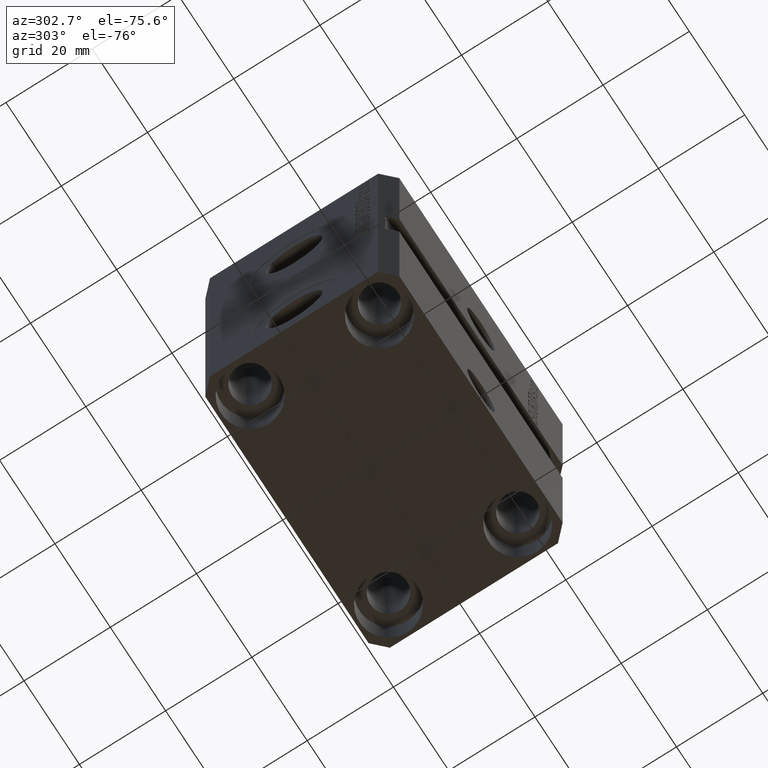
[diagram: clean part render]
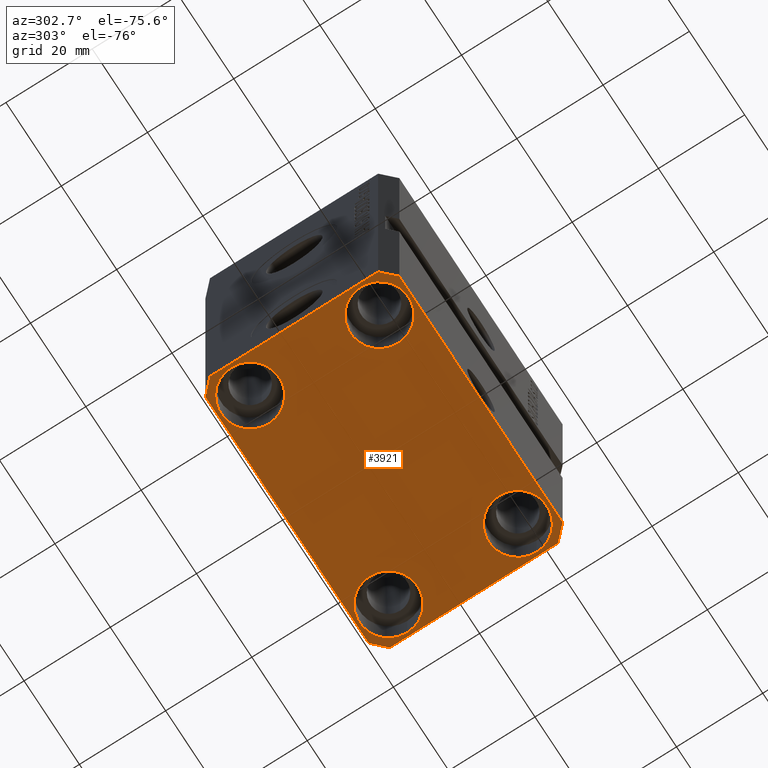
[diagram: same view with one face highlighted and labeled with its STEP entity id]
A machine part, auxiliary view. The second image highlights one B-rep face of the part: STEP entity #3921.
In plain terms, the highlighted planar face has unit normal (0, 0, 1).
Its self-contained STEP definition (entity closure, byte-faithful):
#716 = CARTESIAN_POINT ( 'NONE',  ( 29.49999999999650413, -22.49999999999949196, -77.00000000000000000 ) ) ;
#984 = AXIS2_PLACEMENT_3D ( 'NONE', #17816, #14086, #31594 ) ;
#1004 = LINE ( 'NONE', #39900, #18435 ) ;
#1251 = DIRECTION ( 'NONE',  ( -0.000000000000000000, -0.000000000000000000, 1.000000000000000000 ) ) ;
#1961 = ORIENTED_EDGE ( 'NONE', *, *, #3130, .F. ) ;
#2753 = DIRECTION ( 'NONE',  ( 0.7071067811865474617, -0.7071067811865474617, 0.000000000000000000 ) ) ;
#2755 = CARTESIAN_POINT ( 'NONE',  ( 29.49999999999707967, 22.49999999999951328, -77.00000000000000000 ) ) ;
#3130 = EDGE_CURVE ( 'NONE', #16414, #39366, #18090, .T. ) ;
#3285 = CARTESIAN_POINT ( 'NONE',  ( 32.49999999999651124, -19.49999999999949196, -77.00000000000000000 ) ) ;
#3382 = VERTEX_POINT ( 'NONE', #20301 ) ;
#3740 = CIRCLE ( 'NONE', #8920, 6.749999999958452790 ) ;
#3921 = ADVANCED_FACE ( 'NONE', ( #10703, #6530, #10923, #39377, #35184 ), #31465, .F. ) ;
#5576 = EDGE_CURVE ( 'NONE', #30164, #33578, #1004, .T. ) ;
#6197 = DIRECTION ( 'NONE',  ( 1.000000000000000000, 0.000000000000000000, 0.000000000000000000 ) ) ;
#6279 = DIRECTION ( 'NONE',  ( 1.000000000000000000, 0.000000000000000000, 0.000000000000000000 ) ) ;
#6289 = EDGE_CURVE ( 'NONE', #9867, #15100, #18982, .T. ) ;
#6530 = FACE_BOUND ( 'NONE', #42684, .T. ) ;
#6590 = EDGE_CURVE ( 'NONE', #13483, #14586, #39299, .T. ) ;
#6862 = AXIS2_PLACEMENT_3D ( 'NONE', #21591, #17423, #42822 ) ;
#7390 = CARTESIAN_POINT ( 'NONE',  ( 32.49999999999702993, 19.49999999999945999, -77.00000000000000000 ) ) ;
#7509 = DIRECTION ( 'NONE',  ( 1.000000000000000000, 0.000000000000000000, 0.000000000000000000 ) ) ;
#7963 = DIRECTION ( 'NONE',  ( -0.000000000000000000, -0.000000000000000000, 1.000000000000000000 ) ) ;
#8066 = CARTESIAN_POINT ( 'NONE',  ( -18.24999999995845812, -15.00000000000000000, -77.00000000000000000 ) ) ;
#8144 = DIRECTION ( 'NONE',  ( 0.7071067811865483499, 0.7071067811865466846, 0.000000000000000000 ) ) ;
#8196 = CARTESIAN_POINT ( 'NONE',  ( -25.00000000000000355, -15.00000000000000000, -77.00000000000000000 ) ) ;
#8198 = DIRECTION ( 'NONE',  ( 1.000000000000000000, 1.176083712526788232E-16, 0.000000000000000000 ) ) ;
#8543 = ORIENTED_EDGE ( 'NONE', *, *, #14557, .F. ) ;
#8920 = AXIS2_PLACEMENT_3D ( 'NONE', #41700, #1251, #6279 ) ;
#9867 = VERTEX_POINT ( 'NONE', #34952 ) ;
#10648 = ORIENTED_EDGE ( 'NONE', *, *, #45693, .T. ) ;
#10703 = FACE_BOUND ( 'NONE', #20825, .T. ) ;
#10923 = FACE_BOUND ( 'NONE', #38080, .T. ) ;
#11391 = LINE ( 'NONE', #3285, #29818 ) ;
#12040 = EDGE_CURVE ( 'NONE', #3382, #18371, #3740, .T. ) ;
#12187 = CARTESIAN_POINT ( 'NONE',  ( -32.49999999999650413, -19.49999999999949907, -77.00000000000000000 ) ) ;
#13483 = VERTEX_POINT ( 'NONE', #32022 ) ;
#14086 = DIRECTION ( 'NONE',  ( -0.000000000000000000, -0.000000000000000000, 1.000000000000000000 ) ) ;
#14120 = DIRECTION ( 'NONE',  ( -1.000000000000000000, -2.352167425053553784E-16, 0.000000000000000000 ) ) ;
#14213 = CIRCLE ( 'NONE', #40297, 6.750000000041541881 ) ;
#14557 = EDGE_CURVE ( 'NONE', #16771, #16414, #11391, .T. ) ;
#14586 = VERTEX_POINT ( 'NONE', #31693 ) ;
#15100 = VERTEX_POINT ( 'NONE', #12187 ) ;
#15471 = ORIENTED_EDGE ( 'NONE', *, *, #28351, .T. ) ;
#15689 = ORIENTED_EDGE ( 'NONE', *, *, #19645, .F. ) ;
#15819 = CARTESIAN_POINT ( 'NONE',  ( -31.75000000004154899, -15.00000000000000000, -77.00000000000000000 ) ) ;
#15909 = EDGE_CURVE ( 'NONE', #38912, #24362, #42581, .T. ) ;
#15933 = DIRECTION ( 'NONE',  ( 0.000000000000000000, -1.000000000000000000, 0.000000000000000000 ) ) ;
#16177 = ORIENTED_EDGE ( 'NONE', *, *, #26714, .F. ) ;
#16414 = VERTEX_POINT ( 'NONE', #31493 ) ;
#16488 = CARTESIAN_POINT ( 'NONE',  ( -29.49999999999650413, -22.49999999999949907, -77.00000000000000000 ) ) ;
#16771 = VERTEX_POINT ( 'NONE', #43943 ) ;
#16988 = AXIS2_PLACEMENT_3D ( 'NONE', #42858, #17461, #20719 ) ;
#17286 = AXIS2_PLACEMENT_3D ( 'NONE', #42955, #18454, #18011 ) ;
#17417 = EDGE_CURVE ( 'NONE', #24362, #38912, #20907, .T. ) ;
#17423 = DIRECTION ( 'NONE',  ( -0.000000000000000000, -0.000000000000000000, 1.000000000000000000 ) ) ;
#17461 = DIRECTION ( 'NONE',  ( 0.000000000000000000, 0.000000000000000000, 1.000000000000000000 ) ) ;
#17615 = LINE ( 'NONE', #34411, #21690 ) ;
#17816 = CARTESIAN_POINT ( 'NONE',  ( 24.99999999999999645, 15.00000000000000888, -77.00000000000000000 ) ) ;
#18011 = DIRECTION ( 'NONE',  ( 1.000000000000000000, 0.000000000000000000, 0.000000000000000000 ) ) ;
#18090 = LINE ( 'NONE', #7390, #40788 ) ;
#18371 = VERTEX_POINT ( 'NONE', #36026 ) ;
#18435 = VECTOR ( 'NONE', #8198, 1000.000000000000000 ) ;
#18454 = DIRECTION ( 'NONE',  ( -0.000000000000000000, -0.000000000000000000, 1.000000000000000000 ) ) ;
#18856 = VECTOR ( 'NONE', #14120, 1000.000000000000000 ) ;
#18982 = LINE ( 'NONE', #25775, #35561 ) ;
#19026 = EDGE_CURVE ( 'NONE', #15100, #30164, #41417, .T. ) ;
#19163 = AXIS2_PLACEMENT_3D ( 'NONE', #29671, #43663, #25722 ) ;
#19645 = EDGE_CURVE ( 'NONE', #30735, #9867, #17615, .T. ) ;
#20143 = DIRECTION ( 'NONE',  ( -0.000000000000000000, -0.000000000000000000, 1.000000000000000000 ) ) ;
#20301 = CARTESIAN_POINT ( 'NONE',  ( 31.74999999995845101, 15.00000000000000888, -77.00000000000000000 ) ) ;
#20424 = CARTESIAN_POINT ( 'NONE',  ( -32.49999999999650413, -19.49999999999949907, -77.00000000000000000 ) ) ;
#20719 = DIRECTION ( 'NONE',  ( 1.000000000000000000, 0.000000000000000000, -0.000000000000000000 ) ) ;
#20825 = EDGE_LOOP ( 'NONE', ( #10648, #15471 ) ) ;
#20860 = ORIENTED_EDGE ( 'NONE', *, *, #17417, .T. ) ;
#20907 = CIRCLE ( 'NONE', #17286, 6.750000000022533087 ) ;
#21040 = ORIENTED_EDGE ( 'NONE', *, *, #19026, .F. ) ;
#21411 = DIRECTION ( 'NONE',  ( 1.334402673828349134E-14, 1.000000000000000000, 0.000000000000000000 ) ) ;
#21591 = CARTESIAN_POINT ( 'NONE',  ( -25.00000000000000355, 15.00000000000000000, -77.00000000000000000 ) ) ;
#21651 = LINE ( 'NONE', #716, #28334 ) ;
#21690 = VECTOR ( 'NONE', #34884, 1000.000000000000114 ) ;
#22043 = CARTESIAN_POINT ( 'NONE',  ( -25.00000000000000355, -15.00000000000000000, -77.00000000000000000 ) ) ;
#23143 = EDGE_LOOP ( 'NONE', ( #32043, #20860 ) ) ;
#24362 = VERTEX_POINT ( 'NONE', #31668 ) ;
#24411 = ORIENTED_EDGE ( 'NONE', *, *, #12040, .T. ) ;
#24556 = EDGE_LOOP ( 'NONE', ( #42998, #1961, #8543, #16177, #28548, #21040, #25347, #15689 ) ) ;
#24900 = CIRCLE ( 'NONE', #36814, 6.749999999977465137 ) ;
#25098 = DIRECTION ( 'NONE',  ( -0.7071067811865352493, 0.7071067811865597852, 0.000000000000000000 ) ) ;
#25347 = ORIENTED_EDGE ( 'NONE', *, *, #6289, .F. ) ;
#25722 = DIRECTION ( 'NONE',  ( 1.000000000000000000, 0.000000000000000000, 0.000000000000000000 ) ) ;
#25775 = CARTESIAN_POINT ( 'NONE',  ( -32.49999999999650413, 19.49999999999949907, -77.00000000000000000 ) ) ;
#26714 = EDGE_CURVE ( 'NONE', #33578, #16771, #21651, .T. ) ;
#27806 = ORIENTED_EDGE ( 'NONE', *, *, #39021, .T. ) ;
#27815 = DIRECTION ( 'NONE',  ( 1.000000000000000000, 0.000000000000000000, 0.000000000000000000 ) ) ;
#27897 = LINE ( 'NONE', #2755, #18856 ) ;
#28259 = CARTESIAN_POINT ( 'NONE',  ( 25.00000000000000355, -15.00000000000000000, -77.00000000000000000 ) ) ;
#28334 = VECTOR ( 'NONE', #8144, 1000.000000000000000 ) ;
#28351 = EDGE_CURVE ( 'NONE', #36860, #42619, #14213, .T. ) ;
#28548 = ORIENTED_EDGE ( 'NONE', *, *, #5576, .F. ) ;
#28590 = ORIENTED_EDGE ( 'NONE', *, *, #6590, .T. ) ;
#29544 = CIRCLE ( 'NONE', #31790, 6.750000000041541881 ) ;
#29671 = CARTESIAN_POINT ( 'NONE',  ( 25.00000000000000355, -15.00000000000000000, -77.00000000000000000 ) ) ;
#29818 = VECTOR ( 'NONE', #21411, 1000.000000000000000 ) ;
#29911 = CARTESIAN_POINT ( 'NONE',  ( -31.75000000002253842, 15.00000000000000000, -77.00000000000000000 ) ) ;
#30164 = VERTEX_POINT ( 'NONE', #16488 ) ;
#30735 = VERTEX_POINT ( 'NONE', #42474 ) ;
#31263 = EDGE_CURVE ( 'NONE', #18371, #3382, #38933, .T. ) ;
#31465 = PLANE ( 'NONE',  #16988 ) ;
#31493 = CARTESIAN_POINT ( 'NONE',  ( 32.49999999999702993, 19.49999999999945999, -77.00000000000000000 ) ) ;
#31594 = DIRECTION ( 'NONE',  ( 1.000000000000000000, 0.000000000000000000, 0.000000000000000000 ) ) ;
#31668 = CARTESIAN_POINT ( 'NONE',  ( -18.24999999997747224, 15.00000000000000000, -77.00000000000000000 ) ) ;
#31693 = CARTESIAN_POINT ( 'NONE',  ( 31.74999999997746869, -15.00000000000000000, -77.00000000000000000 ) ) ;
#31790 = AXIS2_PLACEMENT_3D ( 'NONE', #8196, #7963, #7509 ) ;
#32022 = CARTESIAN_POINT ( 'NONE',  ( 18.25000000002253842, -15.00000000000000000, -77.00000000000000000 ) ) ;
#32043 = ORIENTED_EDGE ( 'NONE', *, *, #15909, .T. ) ;
#33578 = VERTEX_POINT ( 'NONE', #36164 ) ;
#34411 = CARTESIAN_POINT ( 'NONE',  ( -29.49999999999650413, 22.49999999999949907, -77.00000000000000000 ) ) ;
#34884 = DIRECTION ( 'NONE',  ( -0.7071067811865474617, -0.7071067811865474617, 0.000000000000000000 ) ) ;
#34952 = CARTESIAN_POINT ( 'NONE',  ( -32.49999999999650413, 19.49999999999949907, -77.00000000000000000 ) ) ;
#35112 = ORIENTED_EDGE ( 'NONE', *, *, #31263, .T. ) ;
#35184 = FACE_OUTER_BOUND ( 'NONE', #24556, .T. ) ;
#35561 = VECTOR ( 'NONE', #15933, 1000.000000000000000 ) ;
#36026 = CARTESIAN_POINT ( 'NONE',  ( 18.25000000004154543, 15.00000000000000888, -77.00000000000000000 ) ) ;
#36164 = CARTESIAN_POINT ( 'NONE',  ( 29.49999999999650413, -22.49999999999949196, -77.00000000000000000 ) ) ;
#36671 = EDGE_CURVE ( 'NONE', #39366, #30735, #27897, .T. ) ;
#36814 = AXIS2_PLACEMENT_3D ( 'NONE', #28259, #41802, #27815 ) ;
#36860 = VERTEX_POINT ( 'NONE', #8066 ) ;
#38080 = EDGE_LOOP ( 'NONE', ( #35112, #24411 ) ) ;
#38088 = VECTOR ( 'NONE', #2753, 1000.000000000000114 ) ;
#38912 = VERTEX_POINT ( 'NONE', #29911 ) ;
#38933 = CIRCLE ( 'NONE', #984, 6.749999999958452790 ) ;
#39021 = EDGE_CURVE ( 'NONE', #14586, #13483, #24900, .T. ) ;
#39299 = CIRCLE ( 'NONE', #19163, 6.749999999977465137 ) ;
#39366 = VERTEX_POINT ( 'NONE', #42952 ) ;
#39377 = FACE_BOUND ( 'NONE', #23143, .T. ) ;
#39900 = CARTESIAN_POINT ( 'NONE',  ( -29.49999999999650413, -22.49999999999949907, -77.00000000000000000 ) ) ;
#40297 = AXIS2_PLACEMENT_3D ( 'NONE', #22043, #20143, #6197 ) ;
#40788 = VECTOR ( 'NONE', #25098, 1000.000000000000000 ) ;
#41417 = LINE ( 'NONE', #20424, #38088 ) ;
#41700 = CARTESIAN_POINT ( 'NONE',  ( 24.99999999999999645, 15.00000000000000888, -77.00000000000000000 ) ) ;
#41802 = DIRECTION ( 'NONE',  ( -0.000000000000000000, -0.000000000000000000, 1.000000000000000000 ) ) ;
#42474 = CARTESIAN_POINT ( 'NONE',  ( -29.49999999999650413, 22.49999999999949907, -77.00000000000000000 ) ) ;
#42581 = CIRCLE ( 'NONE', #6862, 6.750000000022533087 ) ;
#42619 = VERTEX_POINT ( 'NONE', #15819 ) ;
#42684 = EDGE_LOOP ( 'NONE', ( #28590, #27806 ) ) ;
#42822 = DIRECTION ( 'NONE',  ( 1.000000000000000000, 0.000000000000000000, 0.000000000000000000 ) ) ;
#42858 = CARTESIAN_POINT ( 'NONE',  ( 0.000000000000000000, 0.000000000000000000, -77.00000000000000000 ) ) ;
#42952 = CARTESIAN_POINT ( 'NONE',  ( 29.49999999999707967, 22.49999999999951328, -77.00000000000000000 ) ) ;
#42955 = CARTESIAN_POINT ( 'NONE',  ( -25.00000000000000355, 15.00000000000000000, -77.00000000000000000 ) ) ;
#42998 = ORIENTED_EDGE ( 'NONE', *, *, #36671, .F. ) ;
#43663 = DIRECTION ( 'NONE',  ( -0.000000000000000000, -0.000000000000000000, 1.000000000000000000 ) ) ;
#43943 = CARTESIAN_POINT ( 'NONE',  ( 32.49999999999651124, -19.49999999999949196, -77.00000000000000000 ) ) ;
#45693 = EDGE_CURVE ( 'NONE', #42619, #36860, #29544, .T. ) ;